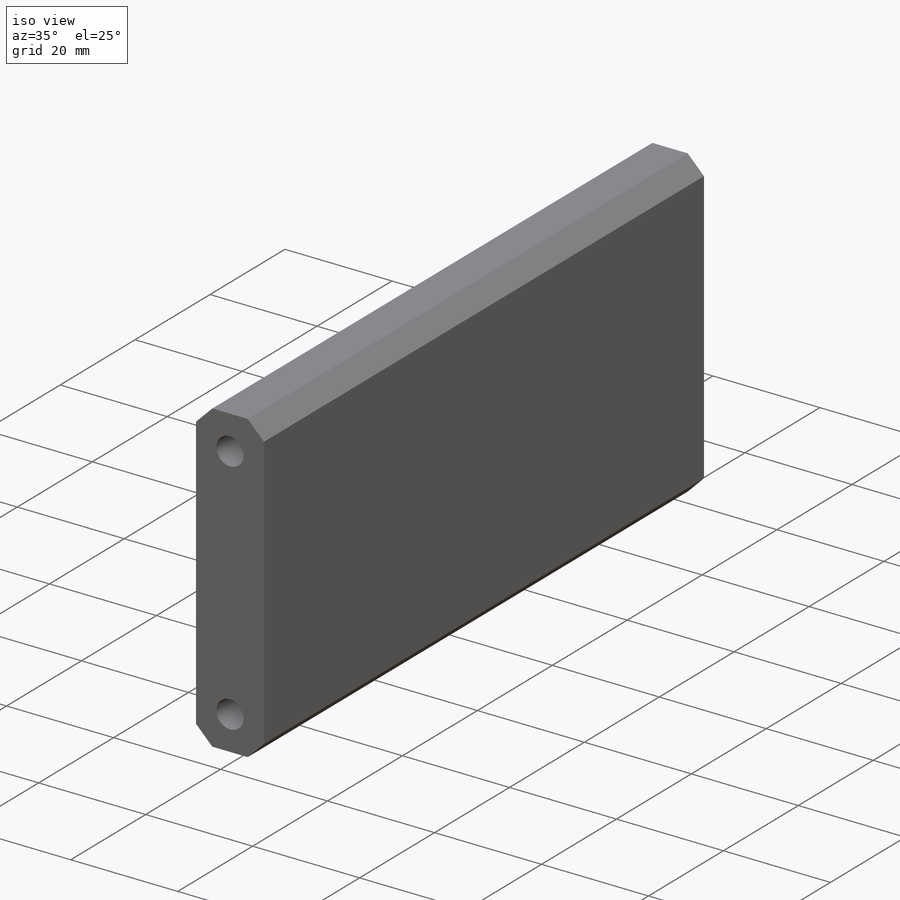
[diagram: iso view]
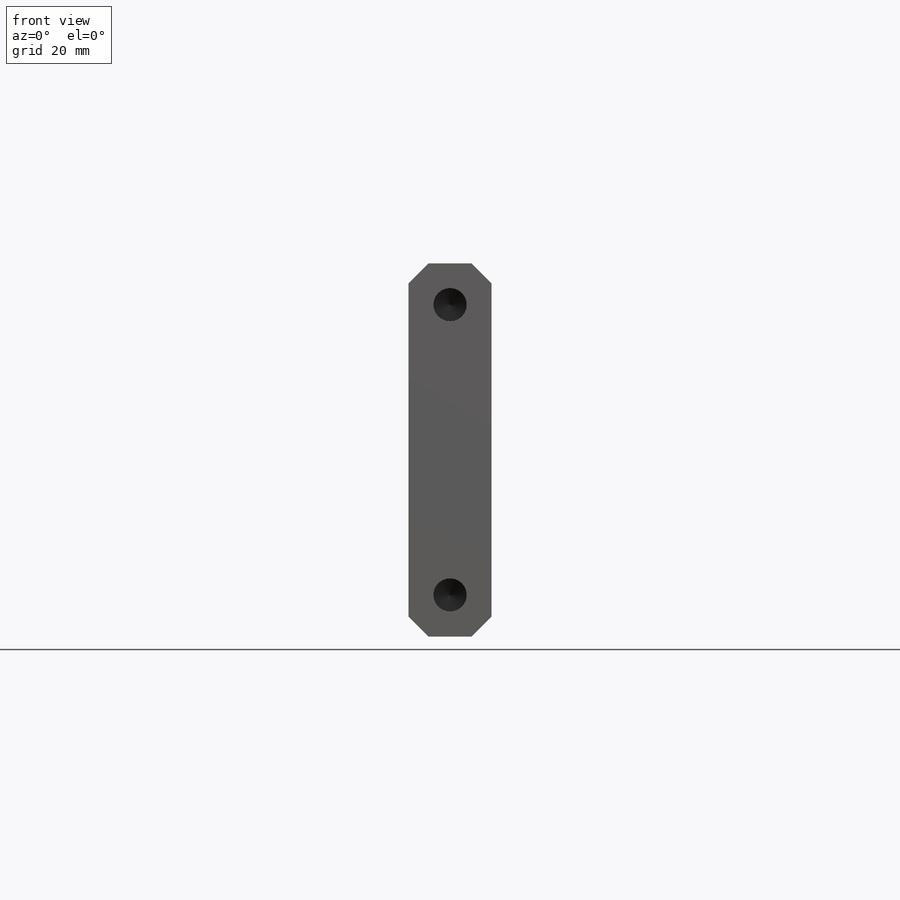
[diagram: front view]
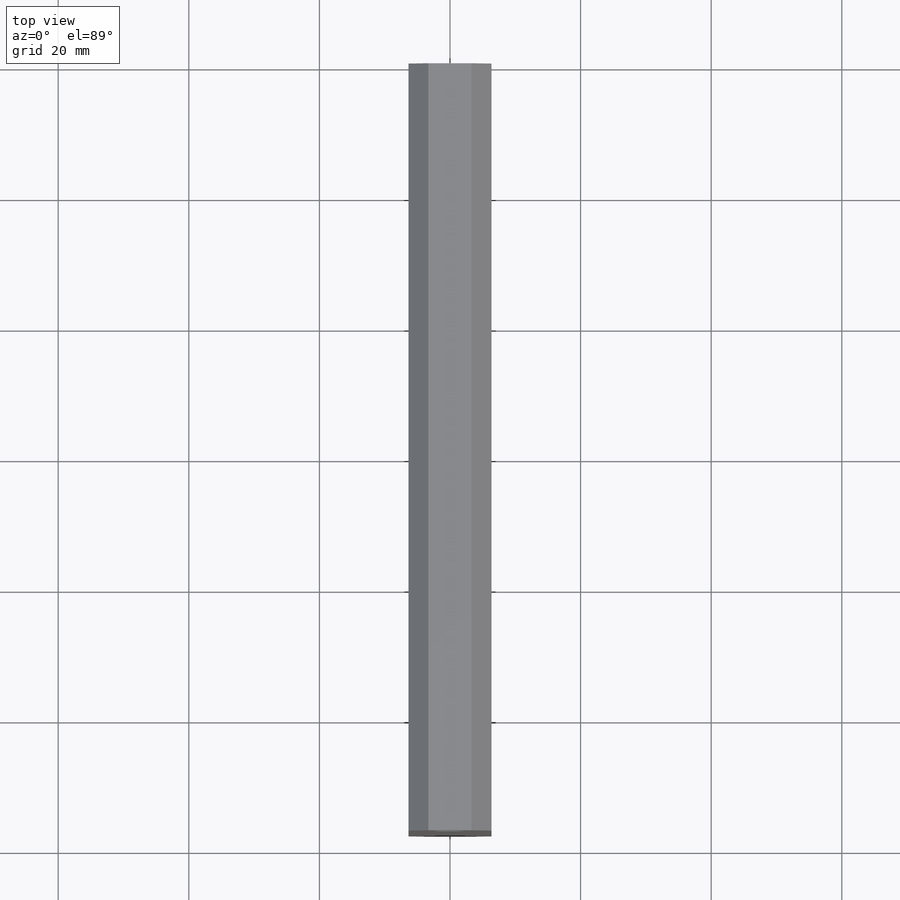
[diagram: top view]
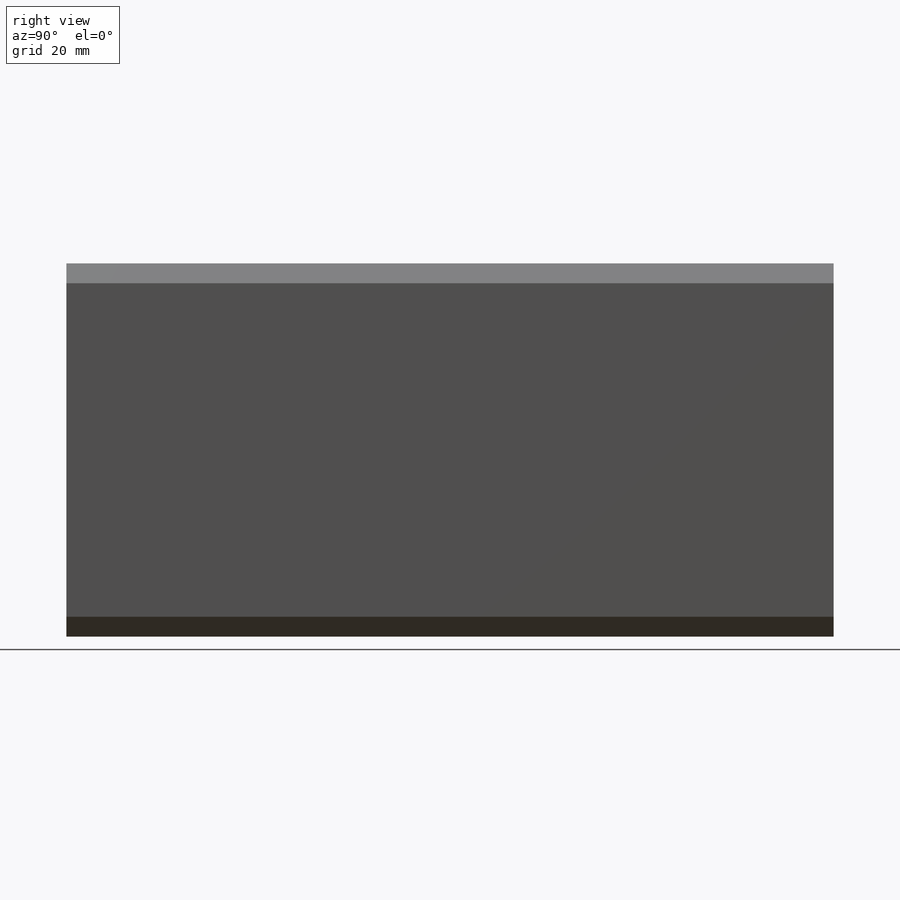
[diagram: right view]
SOLIDWORKS PART (.sldprt)
format: sldprt  version: not decoded by parser v0  size: 232,448 bytes
history: native  units: mm
features: sketch x5, thread x4, hole x2, material x1, extrude x1 + 1 further entry (+13 scaffold rows collapsed)
feature tree (27):
  scaffold x13  (default folders/planes/origin — collapsed)
  material  "304 SSTL"
  "Origin"  ID=-1
  sketch  "Sketch1"  dims[D1=12.7mm D2=44.45mm D5=3.048mm D6=3.048mm D7=3.048mm D8=3.048mm]
  extrude  "Boss-Extrude1"  Depth=117.475mm
  hole  "1/4-20 Tapped Hole1"  Diameter=5.1054mm Depth=22.86mm
  sketch  "Sketch3"  dims[D1=44.45mm]
  sketch  "Sketch2"  dims[hole-wizard template sketch: 50 standard entries collapsed; hole parameters above]
  thread  "Hole Thread1"  Diameter=19.05mm  [1 undecoded]
  thread  "Hole Thread3"  Diameter=19.05mm  [1 undecoded]
  hole  "1/4-20 Tapped Hole2"  Diameter=5.1054mm Depth=23.9014mm
  sketch  "Sketch5"
  sketch  "Sketch4"  dims[hole-wizard template sketch: 47 standard entries collapsed; hole parameters kept: c15.Tap Drill Depth=23.9014mm c15.D3=~14.816244mm c15.Drill Angle=118.0deg]
  thread  "Hole Thread2"  Diameter=19.05mm  [1 undecoded]
  thread  "Hole Thread4"  Diameter=19.05mm  [1 undecoded]
decode coverage: 11 of 12 modeling features carry decoded parameters; 1 rows unclassified (native names shown)
note: ~ marks probable driven/reference dimensions
note: 4 parameter values undecoded
note: suppression state not decoded; provenance and decode notes live in map.json
